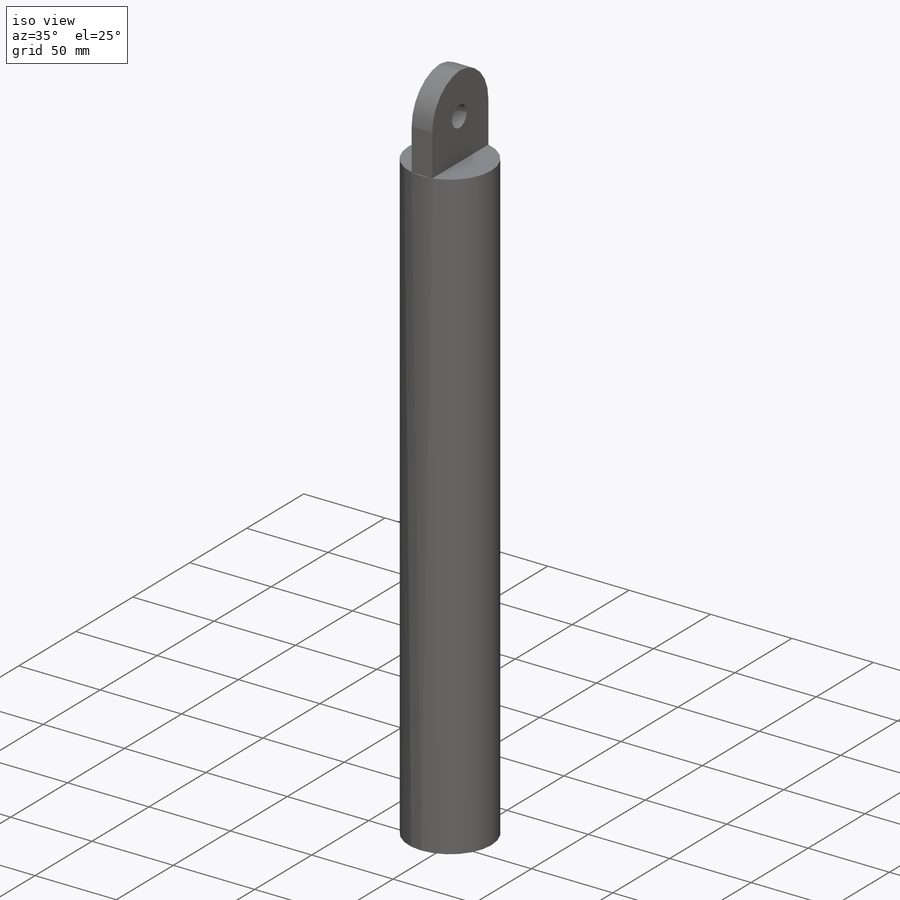
[diagram: iso view]
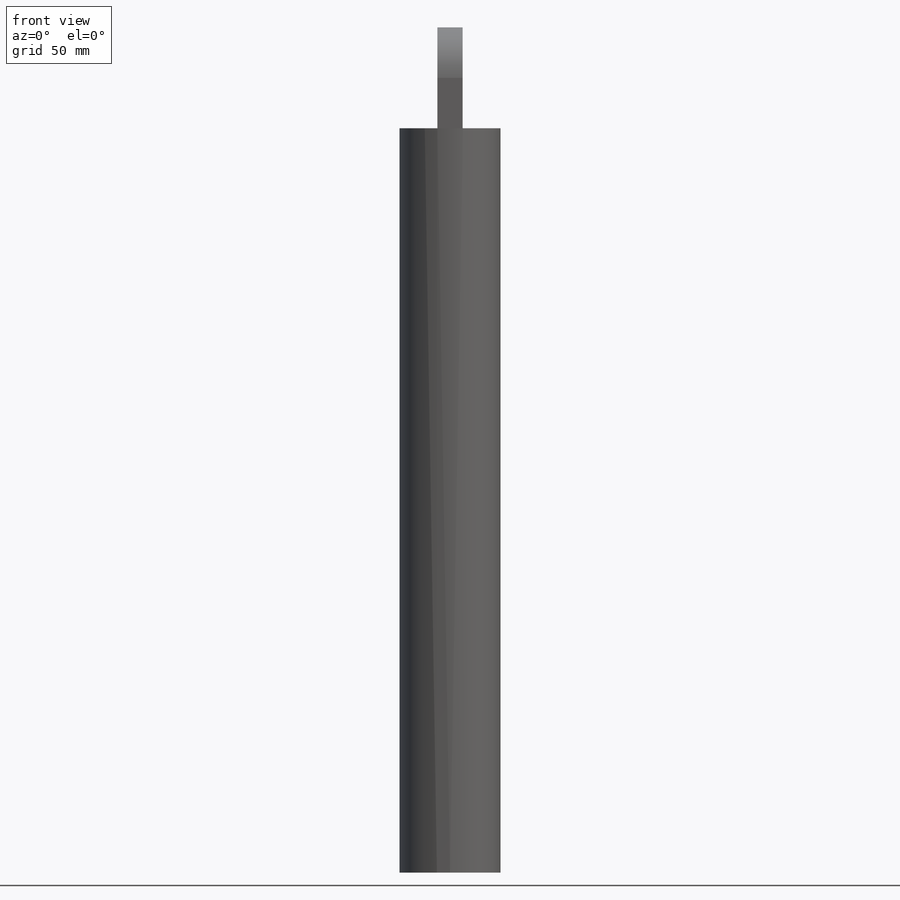
[diagram: front view]
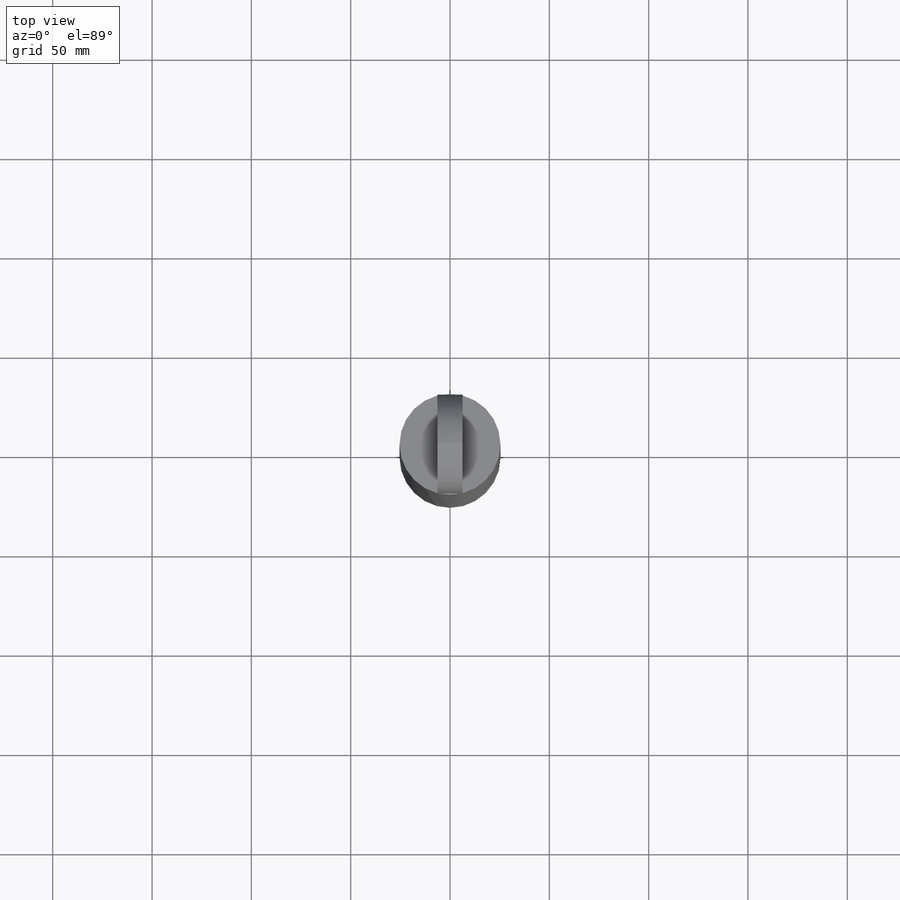
[diagram: top view]
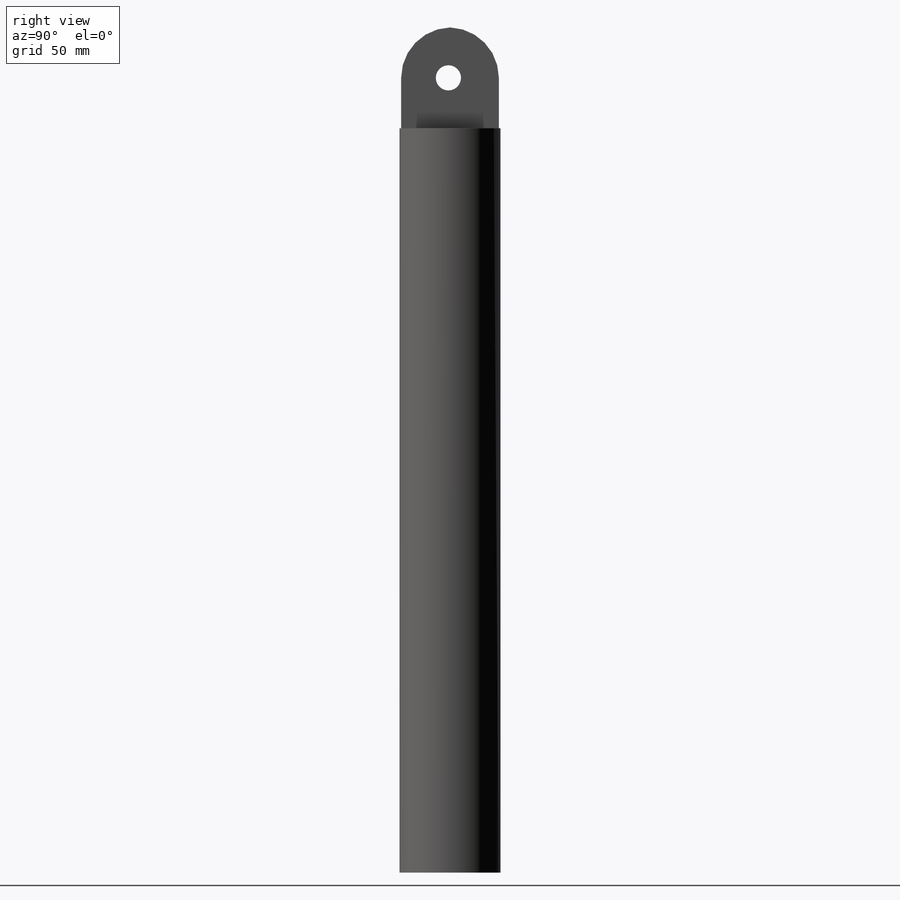
[diagram: right view]
SOLIDWORKS PART (.sldprt)
format: sldprt  version: not decoded by parser v0  size: 133,120 bytes
history: native  units: mm
features: sketch x5, extrude x3, material x1, fillet x1, hole x1, shell x1 (+14 scaffold rows collapsed)
feature tree (26):
  scaffold x14  (default folders/planes/origin — collapsed)
  material  "6061 Alloy"
  sketch  "Sketch1"  dims[D1=50.8mm D2=25.4mm]
  extrude  "Extrude1"  Depth=368.3mm
  sketch  "Sketch2"
  extrude  "Extrude2"  Depth=6.35mm
  sketch  "Sketch3"  dims[D1=12.7mm D2=6.35mm D3=~49.186888mm]
  extrude  "Extrude3"  Depth=50.8mm
  fillet  "Fillet1"  Radius=25.4mm
  hole  "1/2 (0.5) Diameter Hole1"  Diameter=12.7mm Depth=12.7mm
  sketch  "3DSketch1"
  sketch  "Sketch4"  dims[hole-wizard template sketch: 47 standard entries collapsed; hole parameters kept: c15.Hole Depth=12.7mm c15.D3=~14.816244mm c15.Drill Angle=118.0deg]
  shell  "Shell1"  Thickness=2.54mm
decode coverage: 9 of 11 modeling features carry decoded parameters
note: ~ marks probable driven/reference dimensions
note: suppression state not decoded; provenance and decode notes live in map.json
